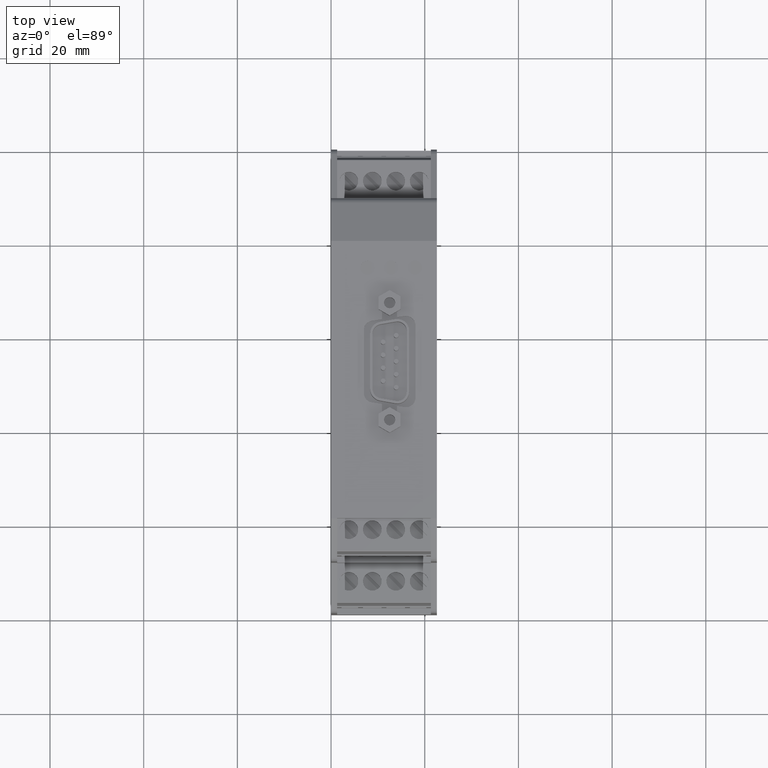
[diagram: clean part render]
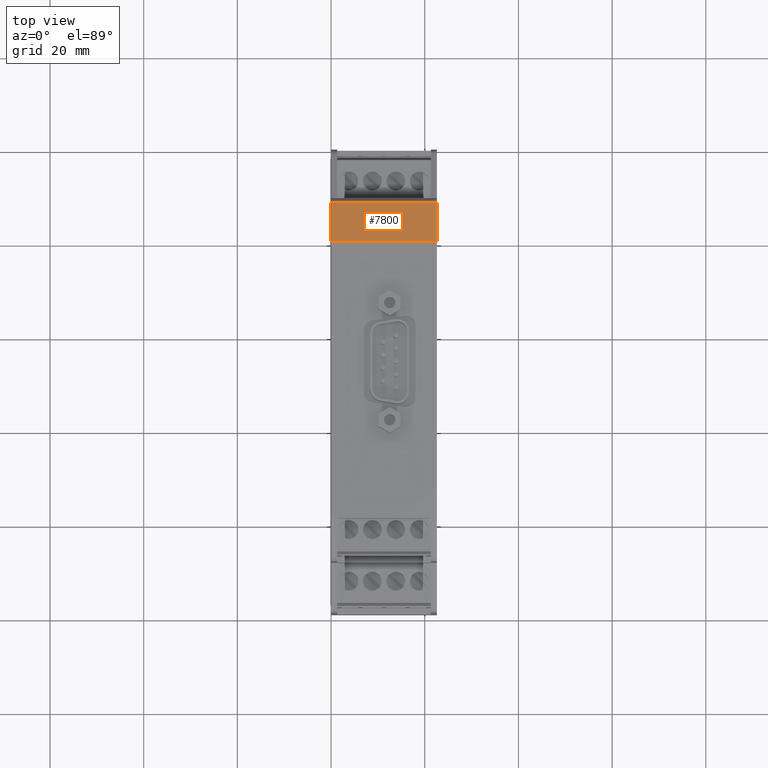
[diagram: same view with one face highlighted and labeled with its STEP entity id]
A machine part, top view. The second image highlights one B-rep face of the part: STEP entity #7800.
In plain terms, the highlighted planar face has unit normal (0, 0.3584, 0.9336).
Its self-contained STEP definition (entity closure, byte-faithful):
#2910=CARTESIAN_POINT('',(37.8375519243449,103.837900079568,0.));
#2920=VERTEX_POINT('',#2910);
#2950=CARTESIAN_POINT('',(-1.39020883780511E-11,118.362375437131,
-3.5527136788005E-15));
#2960=DIRECTION('',(-0.933580426497062,0.358367949545665,
-1.14326852209251E-16));
#2970=VECTOR('',#2960,1.);
#2980=LINE('',#2950,#2970);
#2990=CARTESIAN_POINT('',(29.6000000000141,107.000000000059,0.));
#3000=VERTEX_POINT('',#2990);
#3010=EDGE_CURVE('',#2920,#3000,#2980,.T.);
#7500=CARTESIAN_POINT('',(29.6000000000152,107.000000000059,
1.30000000000028));
#7510=DIRECTION('',(0.358367949545665,0.933580426497062,
4.38859668019919E-17));
#7520=DIRECTION('',(0.933580426497062,-0.358367949545665,0.));
#7530=AXIS2_PLACEMENT_3D('',#7500,#7510,#7520);
#7540=PLANE('',#7530);
#7550=ORIENTED_EDGE('',*,*,#3010,.T.);
#7560=CARTESIAN_POINT('',(37.8375519243449,103.837900079568,22.6));
#7570=DIRECTION('',(0.,0.,-1.));
#7580=VECTOR('',#7570,1.);
#7590=LINE('',#7560,#7580);
#7600=CARTESIAN_POINT('',(37.8375519243449,103.837900079568,22.6));
#7610=VERTEX_POINT('',#7600);
#7620=EDGE_CURVE('',#7610,#2920,#7590,.T.);
#7630=ORIENTED_EDGE('',*,*,#7620,.T.);
#7640=CARTESIAN_POINT('',(-1.39048559884107E-11,118.362375437131,22.6));
#7650=DIRECTION('',(0.933580426497062,-0.358367949545665,0.));
#7660=VECTOR('',#7650,1.);
#7670=LINE('',#7640,#7660);
#7680=CARTESIAN_POINT('',(29.6000000000152,107.000000000059,22.6));
#7690=VERTEX_POINT('',#7680);
#7700=EDGE_CURVE('',#7690,#7610,#7670,.T.);
#7710=ORIENTED_EDGE('',*,*,#7700,.T.);
#7720=CARTESIAN_POINT('',(29.6000000000141,107.000000000059,26.4));
#7730=DIRECTION('',(2.46519032881566E-32,0.,-1.));
#7740=VECTOR('',#7730,1.);
#7750=LINE('',#7720,#7740);
#7760=EDGE_CURVE('',#7690,#3000,#7750,.T.);
#7770=ORIENTED_EDGE('',*,*,#7760,.F.);
#7780=EDGE_LOOP('',(#7770,#7710,#7630,#7550));
#7790=FACE_OUTER_BOUND('',#7780,.T.);
#7800=ADVANCED_FACE('',(#7790),#7540,.T.);